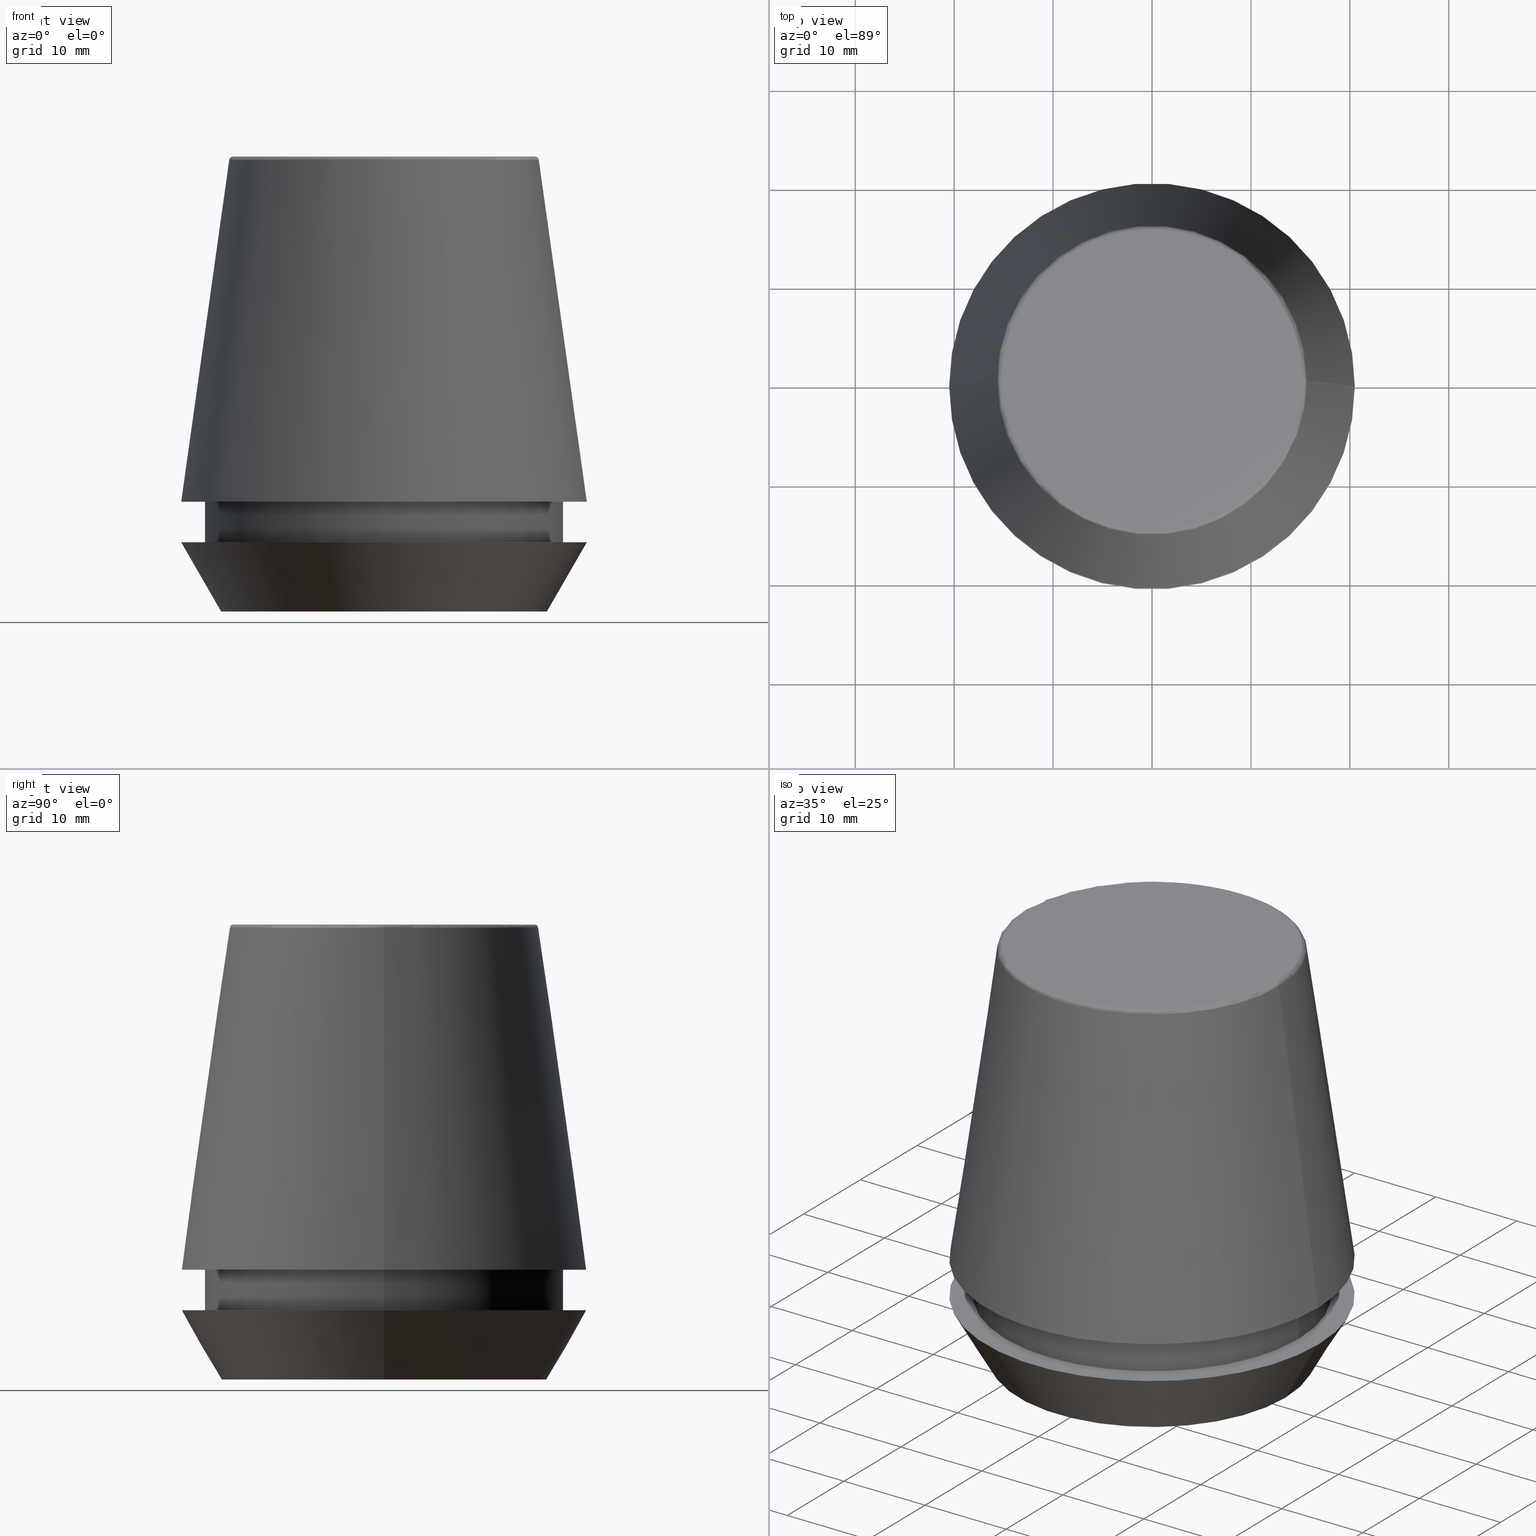
[diagram: canonical four-view strip — front | top / right | iso, engineering-drawing reading convention]
A machine part, canonical four-view strip (front | top / right | iso — engineering-drawing reading convention). The complete STEP part file that produces these views, byte-faithful:
ISO-10303-21;
HEADER;
FILE_DESCRIPTION (( 'STEP AP203' ),
    '1' );
FILE_NAME ('TAP COLLET ER 40G 9.0 X 7.1.STEP',
    '2019-04-10T03:49:40',
    ( '' ),
    ( '' ),
    'SwSTEP 2.0',
    'SolidWorks 2014',
    '' );
FILE_SCHEMA (( 'CONFIG_CONTROL_DESIGN' ));
ENDSEC;

DATA;
#1 = CLOSED_SHELL ( 'NONE', ( #204, #125, #236, #201, #229, #344, #374, #19, #14, #266, #150, #145 ) ) ;
#2 = AXIS2_PLACEMENT_3D ( 'NONE', #301, #261, #293 ) ;
#3 = PERSON_AND_ORGANIZATION_ROLE ( 'creator' ) ;
#4 = ORIENTED_EDGE ( 'NONE', *, *, #191, .T. ) ;
#5 = PRODUCT_DEFINITION_FORMATION_WITH_SPECIFIED_SOURCE ( 'ANY', '', #292, .NOT_KNOWN. ) ;
#6 = CARTESIAN_POINT ( 'NONE',  ( 0.0000000000000000000, 0.0000000000000000000, 11.09999999999999800 ) ) ;
#7 = AXIS2_PLACEMENT_3D ( 'NONE', #254, #65, #217 ) ;
#8 = CARTESIAN_POINT ( 'NONE',  ( 0.0000000000000000000, 0.0000000000000000000, 0.0000000000000000000 ) ) ;
#9 = DIRECTION ( 'NONE',  ( -0.0000000000000000000, -0.0000000000000000000, 1.000000000000000000 ) ) ;
#10 = EDGE_LOOP ( 'NONE', ( #68, #366 ) ) ;
#11 = EDGE_CURVE ( 'NONE', #60, #381, #375, .T. ) ;
#12 = AXIS2_PLACEMENT_3D ( 'NONE', #46, #64, #51 ) ;
#13 = DIRECTION ( 'NONE',  ( -0.4999999999999941700, 6.123233995736694500E-017, 0.8660254037844420400 ) ) ;
#14 = ADVANCED_FACE ( 'NONE', ( #308, #241 ), #291, .F. ) ;
#15 = EDGE_CURVE ( 'NONE', #210, #272, #45, .T. ) ;
#16 = DIRECTION ( 'NONE',  ( 0.1391731009600587200, 1.704378926181473400E-017, -0.9902680687415712500 ) ) ;
#17 = CARTESIAN_POINT ( 'NONE',  ( 0.0000000000000000000, 0.0000000000000000000, 11.09999999999999800 ) ) ;
#18 = CARTESIAN_POINT ( 'NONE',  ( 0.0000000000000000000, 0.0000000000000000000, 11.09999999999999800 ) ) ;
#19 = ADVANCED_FACE ( 'NONE', ( #294 ), #316, .T. ) ;
#20 = CARTESIAN_POINT ( 'NONE',  ( 0.0000000000000000000, 0.0000000000000000000, 7.000000000000006200 ) ) ;
#21 = CARTESIAN_POINT ( 'NONE',  ( 18.10000000000000500, 0.0000000000000000000, 11.09999999999999800 ) ) ;
#22 = CARTESIAN_POINT ( 'NONE',  ( 15.64384277279740400, 2.213191991290356800E-015, 45.65566924038402900 ) ) ;
#23 = CC_DESIGN_DATE_AND_TIME_ASSIGNMENT ( #100, #246, ( #156 ) ) ;
#24 = AXIS2_PLACEMENT_3D ( 'NONE', #26, #101, #268 ) ;
#25 = CIRCLE ( 'NONE', #186, 20.50032537154048700 ) ;
#26 = CARTESIAN_POINT ( 'NONE',  ( 0.0000000000000000000, 0.0000000000000000000, 6.999999999999999100 ) ) ;
#27 = ORIENTED_EDGE ( 'NONE', *, *, #232, .F. ) ;
#28 = ORIENTED_EDGE ( 'NONE', *, *, #15, .F. ) ;
#29 = AXIS2_PLACEMENT_3D ( 'NONE', #108, #338, #328 ) ;
#30 = ORIENTED_EDGE ( 'NONE', *, *, #248, .F. ) ;
#31 = APPROVAL_STATUS ( 'not_yet_approved' ) ;
#32 = ORIENTED_EDGE ( 'NONE', *, *, #50, .F. ) ;
#33 = APPROVAL ( #361, 'UNSPECIFIED' ) ;
#34 =( NAMED_UNIT ( * ) PLANE_ANGLE_UNIT ( ) SI_UNIT ( $, .RADIAN. ) );
#35 = AXIS2_PLACEMENT_3D ( 'NONE', #207, #377, #256 ) ;
#36 = CARTESIAN_POINT ( 'NONE',  ( 0.0000000000000000000, 0.0000000000000000000, 7.000000000000006200 ) ) ;
#37 = ORIENTED_EDGE ( 'NONE', *, *, #133, .F. ) ;
#38 = DIRECTION ( 'NONE',  ( 0.0000000000000000000, 0.0000000000000000000, -1.000000000000000000 ) ) ;
#39 = ORIENTED_EDGE ( 'NONE', *, *, #177, .F. ) ;
#40 = CARTESIAN_POINT ( 'NONE',  ( 0.0000000000000000000, 0.0000000000000000000, 0.0000000000000000000 ) ) ;
#41 = AXIS2_PLACEMENT_3D ( 'NONE', #169, #73, #196 ) ;
#42 = DIRECTION ( 'NONE',  ( -0.0000000000000000000, -0.0000000000000000000, 1.000000000000000000 ) ) ;
#43 = DIRECTION ( 'NONE',  ( -0.0000000000000000000, -0.0000000000000000000, 1.000000000000000000 ) ) ;
#44 = EDGE_LOOP ( 'NONE', ( #359, #172 ) ) ;
#45 = CIRCLE ( 'NONE', #386, 18.10000000000000500 ) ;
#46 = CARTESIAN_POINT ( 'NONE',  ( 0.0000000000000000000, 0.0000000000000000000, 0.0000000000000000000 ) ) ;
#47 = DIRECTION ( 'NONE',  ( -1.000000000000000000, 0.0000000000000000000, 0.0000000000000000000 ) ) ;
#48 = DIRECTION ( 'NONE',  ( 0.0000000000000000000, 0.0000000000000000000, -1.000000000000000000 ) ) ;
#49 = CARTESIAN_POINT ( 'NONE',  ( 0.0000000000000000000, 0.0000000000000000000, 45.60000000000000100 ) ) ;
#50 = EDGE_CURVE ( 'NONE', #199, #272, #290, .T. ) ;
#51 = DIRECTION ( 'NONE',  ( 1.000000000000000000, 0.0000000000000000000, 0.0000000000000000000 ) ) ;
#52 = CARTESIAN_POINT ( 'NONE',  ( -16.45854811567268100, 2.263058382549599700E-015, 0.0000000000000000000 ) ) ;
#53 = VERTEX_POINT ( 'NONE', #382 ) ;
#54 = COORDINATED_UNIVERSAL_TIME_OFFSET ( 5, 30, .AHEAD. ) ;
#55 = AXIS2_PLACEMENT_3D ( 'NONE', #71, #230, #267 ) ;
#56 = ORIENTED_EDGE ( 'NONE', *, *, #154, .T. ) ;
#57 = ORIENTED_EDGE ( 'NONE', *, *, #142, .F. ) ;
#58 = APPROVAL_STATUS ( 'not_yet_approved' ) ;
#59 = APPLICATION_CONTEXT ( 'configuration controlled 3d designs of mechanical parts and assemblies' ) ;
#60 = VERTEX_POINT ( 'NONE', #128 ) ;
#61 = ORIENTED_EDGE ( 'NONE', *, *, #260, .F. ) ;
#62 = VECTOR ( 'NONE', #250, 1000.000000000000000 ) ;
#63 = LOCAL_TIME ( 9, 19, 40.00000000000000000, #54 ) ;
#64 = DIRECTION ( 'NONE',  ( -0.0000000000000000000, -0.0000000000000000000, 1.000000000000000000 ) ) ;
#65 = DIRECTION ( 'NONE',  ( 0.0000000000000000000, -1.000000000000000000, 0.0000000000000000000 ) ) ;
#66 = CARTESIAN_POINT ( 'NONE',  ( -20.50000000000000000, 2.510525938252074100E-015, 7.000000000000006200 ) ) ;
#67 = CC_DESIGN_PERSON_AND_ORGANIZATION_ASSIGNMENT ( #247, #110, ( #5 ) ) ;
#68 = ORIENTED_EDGE ( 'NONE', *, *, #75, .T. ) ;
#69 = CARTESIAN_POINT ( 'NONE',  ( 0.0000000000000000000, 0.0000000000000000000, 45.65566924038402900 ) ) ;
#70 = CC_DESIGN_PERSON_AND_ORGANIZATION_ASSIGNMENT ( #228, #313, ( #5 ) ) ;
#71 = CARTESIAN_POINT ( 'NONE',  ( 0.0000000000000000000, 0.0000000000000000000, 46.00000000000000000 ) ) ;
#72 = DIRECTION ( 'NONE',  ( -1.000000000000000000, 1.224646799147353900E-016, 0.0000000000000000000 ) ) ;
#73 = DIRECTION ( 'NONE',  ( -0.0000000000000000000, -0.0000000000000000000, 1.000000000000000000 ) ) ;
#74 = ORIENTED_EDGE ( 'NONE', *, *, #177, .T. ) ;
#75 = EDGE_CURVE ( 'NONE', #370, #358, #372, .T. ) ;
#76 = CARTESIAN_POINT ( 'NONE',  ( 0.0000000000000000000, 0.0000000000000000000, 45.60000000000000100 ) ) ;
#77 = PERSON_AND_ORGANIZATION ( #94, #235 ) ;
#78 = AXIS2_PLACEMENT_3D ( 'NONE', #18, #296, #47 ) ;
#79 = EDGE_LOOP ( 'NONE', ( #158, #331 ) ) ;
#80 = CC_DESIGN_APPROVAL ( #86, ( #156 ) ) ;
#81 = EDGE_LOOP ( 'NONE', ( #39, #165, #93, #120 ) ) ;
#82 = ORIENTED_EDGE ( 'NONE', *, *, #139, .F. ) ;
#83 = PERSON_AND_ORGANIZATION_ROLE ( 'classification_officer' ) ;
#84 = CARTESIAN_POINT ( 'NONE',  ( 0.0000000000000000000, 0.0000000000000000000, 11.09999999999999800 ) ) ;
#85 = MECHANICAL_CONTEXT ( 'NONE', #160, 'mechanical' ) ;
#86 = APPROVAL ( #58, 'UNSPECIFIED' ) ;
#87 =( LENGTH_UNIT ( ) NAMED_UNIT ( * ) SI_UNIT ( .MILLI., .METRE. ) );
#88 = CARTESIAN_POINT ( 'NONE',  ( 20.50032537154048700, 2.510565784773633700E-015, 11.09999999999999800 ) ) ;
#89 = DIRECTION ( 'NONE',  ( 1.000000000000000000, 0.0000000000000000000, 0.0000000000000000000 ) ) ;
#90 = AXIS2_PLACEMENT_3D ( 'NONE', #8, #269, #367 ) ;
#91 = ORIENTED_EDGE ( 'NONE', *, *, #311, .F. ) ;
#92 = ORIENTED_EDGE ( 'NONE', *, *, #75, .F. ) ;
#93 = ORIENTED_EDGE ( 'NONE', *, *, #11, .T. ) ;
#94 = PERSON ( 'UNSPECIFIED', 'UNSPECIFIED', 'UNSPECIFIED', ('UNSPECIFIED'), ('UNSPECIFIED'), ('UNSPECIFIED') ) ;
#95 = CARTESIAN_POINT ( 'NONE',  ( -18.10000000000000500, 2.216610706456710000E-015, 11.09999999999999800 ) ) ;
#96 = UNCERTAINTY_MEASURE_WITH_UNIT (LENGTH_MEASURE( 1.000000000000000100E-005 ), #87, 'distance_accuracy_value', 'NONE');
#97 = CALENDAR_DATE ( 2019, 10, 4 ) ;
#98 = DIRECTION ( 'NONE',  ( 1.000000000000000000, 0.0000000000000000000, 0.0000000000000000000 ) ) ;
#99 = APPROVAL_PERSON_ORGANIZATION ( #130, #86, #212 ) ;
#100 = DATE_AND_TIME ( #310, #277 ) ;
#101 = DIRECTION ( 'NONE',  ( -0.0000000000000000000, -0.0000000000000000000, 1.000000000000000000 ) ) ;
#102 = EDGE_CURVE ( 'NONE', #381, #346, #25, .T. ) ;
#103 = APPROVAL_DATE_TIME ( #132, #86 ) ;
#104 = ORIENTED_EDGE ( 'NONE', *, *, #248, .T. ) ;
#105 = EDGE_LOOP ( 'NONE', ( #109, #129 ) ) ;
#106 = ORIENTED_EDGE ( 'NONE', *, *, #159, .F. ) ;
#107 = EDGE_CURVE ( 'NONE', #111, #116, #364, .T. ) ;
#108 = CARTESIAN_POINT ( 'NONE',  ( 0.0000000000000000000, 0.0000000000000000000, 46.00000000000000000 ) ) ;
#109 = ORIENTED_EDGE ( 'NONE', *, *, #326, .F. ) ;
#110 = PERSON_AND_ORGANIZATION_ROLE ( 'design_supplier' ) ;
#111 = VERTEX_POINT ( 'NONE', #258 ) ;
#112 = DIRECTION ( 'NONE',  ( 1.000000000000000000, 0.0000000000000000000, 0.0000000000000000000 ) ) ;
#113 = DIRECTION ( 'NONE',  ( 0.0000000000000000000, 0.0000000000000000000, -1.000000000000000000 ) ) ;
#114 = AXIS2_PLACEMENT_3D ( 'NONE', #136, #113, #282 ) ;
#115 = DIRECTION ( 'NONE',  ( 1.000000000000000000, 0.0000000000000000000, 0.0000000000000000000 ) ) ;
#116 = VERTEX_POINT ( 'NONE', #52 ) ;
#117 = DIRECTION ( 'NONE',  ( -0.0000000000000000000, -0.0000000000000000000, 1.000000000000000000 ) ) ;
#118 = EDGE_CURVE ( 'NONE', #60, #131, #193, .T. ) ;
#119 = CARTESIAN_POINT ( 'NONE',  ( 20.50032537154048700, 2.510565784773633700E-015, 11.09999999999999800 ) ) ;
#120 = ORIENTED_EDGE ( 'NONE', *, *, #102, .T. ) ;
#121 = ORIENTED_EDGE ( 'NONE', *, *, #307, .T. ) ;
#122 = CC_DESIGN_SECURITY_CLASSIFICATION ( #156, ( #5 ) ) ;
#123 = CARTESIAN_POINT ( 'NONE',  ( 18.10000000000000500, 0.0000000000000000000, 46.00000000000000000 ) ) ;
#124 = CARTESIAN_POINT ( 'NONE',  ( 0.0000000000000000000, 0.0000000000000000000, 0.0000000000000000000 ) ) ;
#125 = ADVANCED_FACE ( 'NONE', ( #385 ), #351, .T. ) ;
#126 = EDGE_CURVE ( 'NONE', #116, #111, #352, .T. ) ;
#127 = DIRECTION ( 'NONE',  ( -0.0000000000000000000, -0.0000000000000000000, 1.000000000000000000 ) ) ;
#128 = CARTESIAN_POINT ( 'NONE',  ( -15.64384277279740400, 0.0000000000000000000, 45.65566924038402900 ) ) ;
#129 = ORIENTED_EDGE ( 'NONE', *, *, #191, .F. ) ;
#130 = PERSON_AND_ORGANIZATION ( #94, #235 ) ;
#131 = VERTEX_POINT ( 'NONE', #22 ) ;
#132 = DATE_AND_TIME ( #97, #63 ) ;
#133 = EDGE_CURVE ( 'NONE', #60, #358, #360, .T. ) ;
#134 = APPROVAL_ROLE ( '' ) ;
#135 = AXIS2_PLACEMENT_3D ( 'NONE', #20, #171, #373 ) ;
#136 = CARTESIAN_POINT ( 'NONE',  ( 0.0000000000000000000, 20.50000000000000000, 7.000000000000002700 ) ) ;
#137 = CARTESIAN_POINT ( 'NONE',  ( 0.0000000000000000000, 0.0000000000000000000, 6.999999999999999100 ) ) ;
#138 = CARTESIAN_POINT ( 'NONE',  ( 0.0000000000000000000, 0.0000000000000000000, 45.65566924038402900 ) ) ;
#139 = EDGE_CURVE ( 'NONE', #116, #162, #369, .T. ) ;
#140 = DIRECTION ( 'NONE',  ( -0.0000000000000000000, -0.0000000000000000000, 1.000000000000000000 ) ) ;
#141 = CARTESIAN_POINT ( 'NONE',  ( -18.10000000000000100, 2.216610706456709600E-015, 6.999999999999999100 ) ) ;
#142 = EDGE_CURVE ( 'NONE', #53, #210, #355, .T. ) ;
#143 = AXIS2_PLACEMENT_3D ( 'NONE', #69, #43, #200 ) ;
#144 = DIRECTION ( 'NONE',  ( 1.000000000000000000, 0.0000000000000000000, 0.0000000000000000000 ) ) ;
#145 = ADVANCED_FACE ( 'NONE', ( #354 ), #322, .F. ) ;
#146 = CARTESIAN_POINT ( 'NONE',  ( -16.45854811567268100, 2.015590826847124800E-015, 0.0000000000000000000 ) ) ;
#147 = PLANE ( 'NONE',  #152 ) ;
#148 = ORIENTED_EDGE ( 'NONE', *, *, #311, .T. ) ;
#149 = DIRECTION ( 'NONE',  ( -0.0000000000000000000, -0.0000000000000000000, 1.000000000000000000 ) ) ;
#150 = ADVANCED_FACE ( 'NONE', ( #345 ), #339, .T. ) ;
#151 = VERTEX_POINT ( 'NONE', #155 ) ;
#152 = AXIS2_PLACEMENT_3D ( 'NONE', #124, #298, #98 ) ;
#153 = ORIENTED_EDGE ( 'NONE', *, *, #11, .F. ) ;
#154 = EDGE_CURVE ( 'NONE', #346, #381, #335, .T. ) ;
#155 = CARTESIAN_POINT ( 'NONE',  ( 20.50000000000000000, 0.0000000000000000000, 7.000000000000006200 ) ) ;
#156 = SECURITY_CLASSIFICATION ( '', '', #278 ) ;
#157 = DATE_TIME_ROLE ( 'creation_date' ) ;
#158 = ORIENTED_EDGE ( 'NONE', *, *, #159, .T. ) ;
#159 = EDGE_CURVE ( 'NONE', #151, #162, #349, .T. ) ;
#160 = APPLICATION_CONTEXT ( 'configuration controlled 3d designs of mechanical parts and assemblies' ) ;
#161 = DIRECTION ( 'NONE',  ( -0.0000000000000000000, -0.0000000000000000000, 1.000000000000000000 ) ) ;
#162 = VERTEX_POINT ( 'NONE', #66 ) ;
#163 = EDGE_LOOP ( 'NONE', ( #276, #283 ) ) ;
#164 = CARTESIAN_POINT ( 'NONE',  ( -18.10000000000000500, 2.216610706456710000E-015, 46.00000000000000000 ) ) ;
#165 = ORIENTED_EDGE ( 'NONE', *, *, #118, .F. ) ;
#166 = DIRECTION ( 'NONE',  ( 1.224646799147353200E-016, 1.000000000000000000, 0.0000000000000000000 ) ) ;
#167 = EDGE_LOOP ( 'NONE', ( #82, #365, #148, #27 ) ) ;
#168 = AXIS2_PLACEMENT_3D ( 'NONE', #6, #161, #363 ) ;
#169 = CARTESIAN_POINT ( 'NONE',  ( 0.0000000000000000000, 0.0000000000000000000, 0.0000000000000000000 ) ) ;
#170 = CARTESIAN_POINT ( 'NONE',  ( 0.0000000000000000000, 0.0000000000000000000, 46.00000000000000000 ) ) ;
#171 = DIRECTION ( 'NONE',  ( -0.0000000000000000000, -0.0000000000000000000, 1.000000000000000000 ) ) ;
#172 = ORIENTED_EDGE ( 'NONE', *, *, #126, .F. ) ;
#173 = AXIS2_PLACEMENT_3D ( 'NONE', #36, #262, #218 ) ;
#174 =( GEOMETRIC_REPRESENTATION_CONTEXT ( 3 ) GLOBAL_UNCERTAINTY_ASSIGNED_CONTEXT ( ( #96 ) ) GLOBAL_UNIT_ASSIGNED_CONTEXT ( ( #87, #34, #189 ) ) REPRESENTATION_CONTEXT ( 'NONE', 'WORKASPACE' ) );
#175 = CARTESIAN_POINT ( 'NONE',  ( 0.0000000000000000000, 15.24773554530077600, 46.00000000000000000 ) ) ;
#176 = DIRECTION ( 'NONE',  ( 1.000000000000000000, 0.0000000000000000000, 0.0000000000000000000 ) ) ;
#177 = EDGE_CURVE ( 'NONE', #131, #346, #334, .T. ) ;
#178 = EDGE_LOOP ( 'NONE', ( #30, #74, #56, #153 ) ) ;
#179 = ORIENTED_EDGE ( 'NONE', *, *, #118, .T. ) ;
#180 = ORIENTED_EDGE ( 'NONE', *, *, #50, .T. ) ;
#181 = AXIS2_PLACEMENT_3D ( 'NONE', #170, #371, #144 ) ;
#182 = DIRECTION ( 'NONE',  ( 1.000000000000000000, 0.0000000000000000000, 0.0000000000000000000 ) ) ;
#183 = MANIFOLD_SOLID_BREP ( 'Revolve1', #1 ) ;
#184 = EDGE_LOOP ( 'NONE', ( #37, #179, #121, #61 ) ) ;
#185 = PRODUCT_DEFINITION_SHAPE ( 'NONE', 'NONE',  #279 ) ;
#186 = AXIS2_PLACEMENT_3D ( 'NONE', #17, #140, #376 ) ;
#187 = APPROVAL_ROLE ( '' ) ;
#188 = DIRECTION ( 'NONE',  ( 0.0000000000000000000, -0.0000000000000000000, 1.000000000000000000 ) ) ;
#189 =( NAMED_UNIT ( * ) SI_UNIT ( $, .STERADIAN. ) SOLID_ANGLE_UNIT ( ) );
#190 = CARTESIAN_POINT ( 'NONE',  ( 15.24773554530077600, 0.0000000000000000000, 46.00000000000000000 ) ) ;
#191 = EDGE_CURVE ( 'NONE', #199, #53, #333, .T. ) ;
#192 = EDGE_LOOP ( 'NONE', ( #104, #264, #92, #356 ) ) ;
#193 = CIRCLE ( 'NONE', #353, 15.64384277279740400 ) ;
#194 = DIRECTION ( 'NONE',  ( 1.000000000000000000, 0.0000000000000000000, 0.0000000000000000000 ) ) ;
#195 = ORIENTED_EDGE ( 'NONE', *, *, #357, .F. ) ;
#196 = DIRECTION ( 'NONE',  ( 1.000000000000000000, 0.0000000000000000000, 0.0000000000000000000 ) ) ;
#197 = ORIENTED_EDGE ( 'NONE', *, *, #107, .T. ) ;
#198 = CC_DESIGN_PERSON_AND_ORGANIZATION_ASSIGNMENT ( #77, #83, ( #156 ) ) ;
#199 = VERTEX_POINT ( 'NONE', #141 ) ;
#200 = DIRECTION ( 'NONE',  ( 1.000000000000000000, 0.0000000000000000000, 0.0000000000000000000 ) ) ;
#201 = ADVANCED_FACE ( 'NONE', ( #324 ), #314, .T. ) ;
#202 = DESIGN_CONTEXT ( 'detailed design', #59, 'design' ) ;
#203 = DIRECTION ( 'NONE',  ( 1.000000000000000000, 0.0000000000000000000, 0.0000000000000000000 ) ) ;
#204 = ADVANCED_FACE ( 'NONE', ( #323 ), #317, .T. ) ;
#205 = COORDINATED_UNIVERSAL_TIME_OFFSET ( 5, 30, .AHEAD. ) ;
#206 = CC_DESIGN_PERSON_AND_ORGANIZATION_ASSIGNMENT ( #219, #3, ( #279 ) ) ;
#207 = CARTESIAN_POINT ( 'NONE',  ( 0.0000000000000000000, 0.0000000000000000000, 46.00000000000000000 ) ) ;
#208 = CC_DESIGN_APPROVAL ( #33, ( #5 ) ) ;
#209 = DATE_AND_TIME ( #211, #214 ) ;
#210 = VERTEX_POINT ( 'NONE', #21 ) ;
#211 = CALENDAR_DATE ( 2019, 10, 4 ) ;
#212 = APPROVAL_ROLE ( '' ) ;
#213 = APPLICATION_PROTOCOL_DEFINITION ( 'international standard', 'config_control_design', 1994, #59 ) ;
#214 = LOCAL_TIME ( 9, 19, 40.00000000000000000, #215 ) ;
#215 = COORDINATED_UNIVERSAL_TIME_OFFSET ( 5, 30, .AHEAD. ) ;
#216 = AXIS2_PLACEMENT_3D ( 'NONE', #137, #321, #115 ) ;
#217 = DIRECTION ( 'NONE',  ( 0.0000000000000000000, 0.0000000000000000000, -1.000000000000000000 ) ) ;
#218 = DIRECTION ( 'NONE',  ( 1.000000000000000000, 0.0000000000000000000, 0.0000000000000000000 ) ) ;
#219 = PERSON_AND_ORGANIZATION ( #94, #235 ) ;
#220 = APPROVAL_DATE_TIME ( #233, #305 ) ;
#221 = DATE_AND_TIME ( #222, #223 ) ;
#222 = CALENDAR_DATE ( 2019, 10, 4 ) ;
#223 = LOCAL_TIME ( 9, 19, 40.00000000000000000, #225 ) ;
#224 = DIRECTION ( 'NONE',  ( -1.000000000000000000, 0.0000000000000000000, 0.0000000000000000000 ) ) ;
#225 = COORDINATED_UNIVERSAL_TIME_OFFSET ( 5, 30, .AHEAD. ) ;
#226 = APPROVAL_PERSON_ORGANIZATION ( #227, #33, #134 ) ;
#227 = PERSON_AND_ORGANIZATION ( #94, #235 ) ;
#228 = PERSON_AND_ORGANIZATION ( #94, #235 ) ;
#229 = ADVANCED_FACE ( 'NONE', ( #312 ), #147, .F. ) ;
#230 = DIRECTION ( 'NONE',  ( -0.0000000000000000000, -0.0000000000000000000, 1.000000000000000000 ) ) ;
#231 = EDGE_LOOP ( 'NONE', ( #197, #342, #106, #91 ) ) ;
#232 = EDGE_CURVE ( 'NONE', #162, #151, #341, .T. ) ;
#233 = DATE_AND_TIME ( #234, #245 ) ;
#234 = CALENDAR_DATE ( 2019, 10, 4 ) ;
#235 = ORGANIZATION ( 'UNSPECIFIED', 'UNSPECIFIED', '' ) ;
#236 = ADVANCED_FACE ( 'NONE', ( #315 ), #299, .T. ) ;
#237 = CARTESIAN_POINT ( 'NONE',  ( 16.45854811567268100, 0.0000000000000000000, 0.0000000000000000000 ) ) ;
#238 = CARTESIAN_POINT ( 'NONE',  ( 0.0000000000000000000, 0.0000000000000000000, 11.09999999999999800 ) ) ;
#239 = PERSON_AND_ORGANIZATION ( #94, #235 ) ;
#240 = PERSON_AND_ORGANIZATION ( #94, #235 ) ;
#241 = FACE_BOUND ( 'NONE', #287, .T. ) ;
#242 = APPROVAL_PERSON_ORGANIZATION ( #240, #305, #187 ) ;
#243 = ORIENTED_EDGE ( 'NONE', *, *, #142, .T. ) ;
#244 = COORDINATED_UNIVERSAL_TIME_OFFSET ( 5, 30, .AHEAD. ) ;
#245 = LOCAL_TIME ( 9, 19, 40.00000000000000000, #244 ) ;
#246 = DATE_TIME_ROLE ( 'classification_date' ) ;
#247 = PERSON_AND_ORGANIZATION ( #94, #235 ) ;
#248 = EDGE_CURVE ( 'NONE', #131, #60, #297, .T. ) ;
#249 = PERSON_AND_ORGANIZATION_ROLE ( 'design_owner' ) ;
#250 = DIRECTION ( 'NONE',  ( -0.1391731009600587200, 0.0000000000000000000, -0.9902680687415712500 ) ) ;
#251 = CARTESIAN_POINT ( 'NONE',  ( 0.0000000000000000000, 0.0000000000000000000, 0.0000000000000000000 ) ) ;
#252 = CARTESIAN_POINT ( 'NONE',  ( -20.50032537154048700, 0.0000000000000000000, 11.09999999999999800 ) ) ;
#253 = ORIENTED_EDGE ( 'NONE', *, *, #357, .T. ) ;
#254 = CARTESIAN_POINT ( 'NONE',  ( 15.24773554530077600, 0.0000000000000000000, 45.60000000000000100 ) ) ;
#255 = APPROVAL_DATE_TIME ( #221, #33 ) ;
#256 = DIRECTION ( 'NONE',  ( 1.000000000000000000, 0.0000000000000000000, 0.0000000000000000000 ) ) ;
#257 = VECTOR ( 'NONE', #149, 1000.000000000000000 ) ;
#258 = CARTESIAN_POINT ( 'NONE',  ( 16.45854811567268100, 0.0000000000000000000, 0.0000000000000000000 ) ) ;
#259 = AXIS2_PLACEMENT_3D ( 'NONE', #49, #42, #176 ) ;
#260 = EDGE_CURVE ( 'NONE', #358, #370, #309, .T. ) ;
#261 = DIRECTION ( 'NONE',  ( -0.0000000000000000000, -0.0000000000000000000, 1.000000000000000000 ) ) ;
#262 = DIRECTION ( 'NONE',  ( -0.0000000000000000000, -0.0000000000000000000, 1.000000000000000000 ) ) ;
#263 = CONICAL_SURFACE ( 'NONE', #90, 16.45854811567268100, 0.5235987755982921500 ) ;
#264 = ORIENTED_EDGE ( 'NONE', *, *, #133, .T. ) ;
#265 = DIRECTION ( 'NONE',  ( -0.0000000000000000000, -0.0000000000000000000, 1.000000000000000000 ) ) ;
#266 = ADVANCED_FACE ( 'NONE', ( #327 ), #275, .T. ) ;
#267 = DIRECTION ( 'NONE',  ( 1.000000000000000000, 0.0000000000000000000, 0.0000000000000000000 ) ) ;
#268 = DIRECTION ( 'NONE',  ( 1.000000000000000000, 0.0000000000000000000, 0.0000000000000000000 ) ) ;
#269 = DIRECTION ( 'NONE',  ( -0.0000000000000000000, -0.0000000000000000000, 1.000000000000000000 ) ) ;
#270 = AXIS2_PLACEMENT_3D ( 'NONE', #329, #188, #378 ) ;
#271 = FACE_OUTER_BOUND ( 'NONE', #79, .T. ) ;
#272 = VERTEX_POINT ( 'NONE', #95 ) ;
#273 = AXIS2_PLACEMENT_3D ( 'NONE', #251, #318, #112 ) ;
#274 = CIRCLE ( 'NONE', #7, 0.3999999999999975800 ) ;
#275 = CONICAL_SURFACE ( 'NONE', #78, 20.50032537154048700, 0.1396263401595396200 ) ;
#276 = ORIENTED_EDGE ( 'NONE', *, *, #102, .F. ) ;
#277 = LOCAL_TIME ( 9, 19, 40.00000000000000000, #205 ) ;
#278 = SECURITY_CLASSIFICATION_LEVEL ( 'unclassified' ) ;
#279 = PRODUCT_DEFINITION ( 'UNKNOWN', '', #5, #202 ) ;
#280 = APPLICATION_PROTOCOL_DEFINITION ( 'international standard', 'config_control_design', 1994, #160 ) ;
#281 = CIRCLE ( 'NONE', #168, 18.10000000000000500 ) ;
#282 = DIRECTION ( 'NONE',  ( -1.000000000000000000, 0.0000000000000000000, -0.0000000000000000000 ) ) ;
#283 = ORIENTED_EDGE ( 'NONE', *, *, #154, .F. ) ;
#284 = CARTESIAN_POINT ( 'NONE',  ( -15.24773554530077600, 1.891563625393435400E-015, 46.00000000000000000 ) ) ;
#285 = CC_DESIGN_DATE_AND_TIME_ASSIGNMENT ( #209, #157, ( #279 ) ) ;
#286 = DIRECTION ( 'NONE',  ( -1.000000000000000000, 0.0000000000000000000, -0.0000000000000000000 ) ) ;
#287 = EDGE_LOOP ( 'NONE', ( #387, #253 ) ) ;
#288 = DIRECTION ( 'NONE',  ( 0.4999999999999941700, 0.0000000000000000000, 0.8660254037844420400 ) ) ;
#289 = SHAPE_DEFINITION_REPRESENTATION ( #185, #337 ) ;
#290 = LINE ( 'NONE', #164, #257 ) ;
#291 = PLANE ( 'NONE',  #270 ) ;
#292 = PRODUCT ( 'TAP COLLET ER 40G 9.0 X 7.1', 'TAP COLLET ER 40G 9.0 X 7.1', '', ( #85 ) ) ;
#293 = DIRECTION ( 'NONE',  ( 1.000000000000000000, 0.0000000000000000000, 0.0000000000000000000 ) ) ;
#294 = FACE_OUTER_BOUND ( 'NONE', #350, .T. ) ;
#295 = CC_DESIGN_PERSON_AND_ORGANIZATION_ASSIGNMENT ( #239, #249, ( #292 ) ) ;
#296 = DIRECTION ( 'NONE',  ( 0.0000000000000000000, 0.0000000000000000000, -1.000000000000000000 ) ) ;
#297 = CIRCLE ( 'NONE', #143, 15.64384277279740400 ) ;
#298 = DIRECTION ( 'NONE',  ( 0.0000000000000000000, -0.0000000000000000000, 1.000000000000000000 ) ) ;
#299 = CYLINDRICAL_SURFACE ( 'NONE', #55, 18.10000000000000500 ) ;
#300 = FACE_BOUND ( 'NONE', #105, .T. ) ;
#301 = CARTESIAN_POINT ( 'NONE',  ( 0.0000000000000000000, 0.0000000000000000000, 11.09999999999999800 ) ) ;
#302 = FACE_OUTER_BOUND ( 'NONE', #167, .T. ) ;
#303 = EDGE_LOOP ( 'NONE', ( #383, #180, #28, #57 ) ) ;
#304 = VECTOR ( 'NONE', #288, 1000.000000000000000 ) ;
#305 = APPROVAL ( #31, 'UNSPECIFIED' ) ;
#306 = CIRCLE ( 'NONE', #216, 18.10000000000000100 ) ;
#307 = EDGE_CURVE ( 'NONE', #131, #370, #274, .T. ) ;
#308 = FACE_OUTER_BOUND ( 'NONE', #163, .T. ) ;
#309 = CIRCLE ( 'NONE', #181, 15.24773554530077600 ) ;
#310 = CALENDAR_DATE ( 2019, 10, 4 ) ;
#311 = EDGE_CURVE ( 'NONE', #111, #151, #319, .T. ) ;
#312 = FACE_OUTER_BOUND ( 'NONE', #44, .T. ) ;
#313 = PERSON_AND_ORGANIZATION_ROLE ( 'creator' ) ;
#314 = CONICAL_SURFACE ( 'NONE', #41, 16.45854811567268100, 0.5235987755982921500 ) ;
#315 = FACE_OUTER_BOUND ( 'NONE', #303, .T. ) ;
#316 = CYLINDRICAL_SURFACE ( 'NONE', #35, 18.10000000000000500 ) ;
#317 = TOROIDAL_SURFACE ( 'NONE', #259, 15.24773554530077600, 0.3999999999999991900 ) ;
#318 = DIRECTION ( 'NONE',  ( 0.0000000000000000000, 0.0000000000000000000, 1.000000000000000000 ) ) ;
#319 = LINE ( 'NONE', #237, #304 ) ;
#320 = PLANE ( 'NONE',  #114 ) ;
#321 = DIRECTION ( 'NONE',  ( -0.0000000000000000000, -0.0000000000000000000, 1.000000000000000000 ) ) ;
#322 = PLANE ( 'NONE',  #380 ) ;
#323 = FACE_OUTER_BOUND ( 'NONE', #192, .T. ) ;
#324 = FACE_OUTER_BOUND ( 'NONE', #231, .T. ) ;
#325 = CARTESIAN_POINT ( 'NONE',  ( -20.50032537154048700, 0.0000000000000000000, 11.09999999999999800 ) ) ;
#326 = EDGE_CURVE ( 'NONE', #53, #199, #306, .T. ) ;
#327 = FACE_OUTER_BOUND ( 'NONE', #81, .T. ) ;
#328 = DIRECTION ( 'NONE',  ( 1.000000000000000000, 0.0000000000000000000, 0.0000000000000000000 ) ) ;
#329 = CARTESIAN_POINT ( 'NONE',  ( 0.0000000000000000000, 20.50032537154048700, 11.09999999999999800 ) ) ;
#330 = VECTOR ( 'NONE', #16, 1000.000000000000000 ) ;
#331 = ORIENTED_EDGE ( 'NONE', *, *, #232, .T. ) ;
#332 = DIRECTION ( 'NONE',  ( -0.0000000000000000000, -0.0000000000000000000, 1.000000000000000000 ) ) ;
#333 = CIRCLE ( 'NONE', #24, 18.10000000000000100 ) ;
#334 = LINE ( 'NONE', #119, #330 ) ;
#335 = CIRCLE ( 'NONE', #2, 20.50032537154048700 ) ;
#336 = AXIS2_PLACEMENT_3D ( 'NONE', #238, #38, #224 ) ;
#337 = ADVANCED_BREP_SHAPE_REPRESENTATION ( 'TAP COLLET ER 40G 9.0 X 7.1', ( #183, #273 ), #174 ) ;
#338 = DIRECTION ( 'NONE',  ( -0.0000000000000000000, -0.0000000000000000000, 1.000000000000000000 ) ) ;
#339 = TOROIDAL_SURFACE ( 'NONE', #384, 15.24773554530077600, 0.3999999999999991900 ) ;
#340 = CC_DESIGN_APPROVAL ( #305, ( #279 ) ) ;
#341 = CIRCLE ( 'NONE', #135, 20.50000000000000000 ) ;
#342 = ORIENTED_EDGE ( 'NONE', *, *, #139, .T. ) ;
#343 = CARTESIAN_POINT ( 'NONE',  ( -15.24773554530077600, 1.867309052979791600E-015, 45.60000000000000100 ) ) ;
#344 = ADVANCED_FACE ( 'NONE', ( #302 ), #263, .T. ) ;
#345 = FACE_OUTER_BOUND ( 'NONE', #184, .T. ) ;
#346 = VERTEX_POINT ( 'NONE', #88 ) ;
#347 = AXIS2_PLACEMENT_3D ( 'NONE', #40, #332, #194 ) ;
#348 = VECTOR ( 'NONE', #117, 1000.000000000000000 ) ;
#349 = CIRCLE ( 'NONE', #173, 20.50000000000000000 ) ;
#350 = EDGE_LOOP ( 'NONE', ( #32, #4, #243, #195 ) ) ;
#351 = CONICAL_SURFACE ( 'NONE', #336, 20.50032537154048700, 0.1396263401595396200 ) ;
#352 = CIRCLE ( 'NONE', #347, 16.45854811567268100 ) ;
#353 = AXIS2_PLACEMENT_3D ( 'NONE', #138, #265, #203 ) ;
#354 = FACE_OUTER_BOUND ( 'NONE', #10, .T. ) ;
#355 = LINE ( 'NONE', #123, #348 ) ;
#356 = ORIENTED_EDGE ( 'NONE', *, *, #307, .F. ) ;
#357 = EDGE_CURVE ( 'NONE', #272, #210, #281, .T. ) ;
#358 = VERTEX_POINT ( 'NONE', #284 ) ;
#359 = ORIENTED_EDGE ( 'NONE', *, *, #107, .F. ) ;
#360 = CIRCLE ( 'NONE', #362, 0.3999999999999975800 ) ;
#361 = APPROVAL_STATUS ( 'not_yet_approved' ) ;
#362 = AXIS2_PLACEMENT_3D ( 'NONE', #343, #166, #72 ) ;
#363 = DIRECTION ( 'NONE',  ( 1.000000000000000000, 0.0000000000000000000, 0.0000000000000000000 ) ) ;
#364 = CIRCLE ( 'NONE', #12, 16.45854811567268100 ) ;
#365 = ORIENTED_EDGE ( 'NONE', *, *, #126, .T. ) ;
#366 = ORIENTED_EDGE ( 'NONE', *, *, #260, .T. ) ;
#367 = DIRECTION ( 'NONE',  ( 1.000000000000000000, 0.0000000000000000000, 0.0000000000000000000 ) ) ;
#368 = VECTOR ( 'NONE', #13, 1000.000000000000000 ) ;
#369 = LINE ( 'NONE', #146, #368 ) ;
#370 = VERTEX_POINT ( 'NONE', #190 ) ;
#371 = DIRECTION ( 'NONE',  ( -0.0000000000000000000, -0.0000000000000000000, 1.000000000000000000 ) ) ;
#372 = CIRCLE ( 'NONE', #29, 15.24773554530077600 ) ;
#373 = DIRECTION ( 'NONE',  ( 1.000000000000000000, 0.0000000000000000000, 0.0000000000000000000 ) ) ;
#374 = ADVANCED_FACE ( 'NONE', ( #300, #271 ), #320, .F. ) ;
#375 = LINE ( 'NONE', #325, #62 ) ;
#376 = DIRECTION ( 'NONE',  ( 1.000000000000000000, 0.0000000000000000000, 0.0000000000000000000 ) ) ;
#377 = DIRECTION ( 'NONE',  ( -0.0000000000000000000, -0.0000000000000000000, 1.000000000000000000 ) ) ;
#378 = DIRECTION ( 'NONE',  ( 1.000000000000000000, 0.0000000000000000000, 0.0000000000000000000 ) ) ;
#379 = PRODUCT_RELATED_PRODUCT_CATEGORY ( 'detail', '', ( #292 ) ) ;
#380 = AXIS2_PLACEMENT_3D ( 'NONE', #175, #48, #286 ) ;
#381 = VERTEX_POINT ( 'NONE', #252 ) ;
#382 = CARTESIAN_POINT ( 'NONE',  ( 18.10000000000000100, 0.0000000000000000000, 6.999999999999999100 ) ) ;
#383 = ORIENTED_EDGE ( 'NONE', *, *, #326, .T. ) ;
#384 = AXIS2_PLACEMENT_3D ( 'NONE', #76, #127, #89 ) ;
#385 = FACE_OUTER_BOUND ( 'NONE', #178, .T. ) ;
#386 = AXIS2_PLACEMENT_3D ( 'NONE', #84, #9, #182 ) ;
#387 = ORIENTED_EDGE ( 'NONE', *, *, #15, .T. ) ;
ENDSEC;
END-ISO-10303-21;
